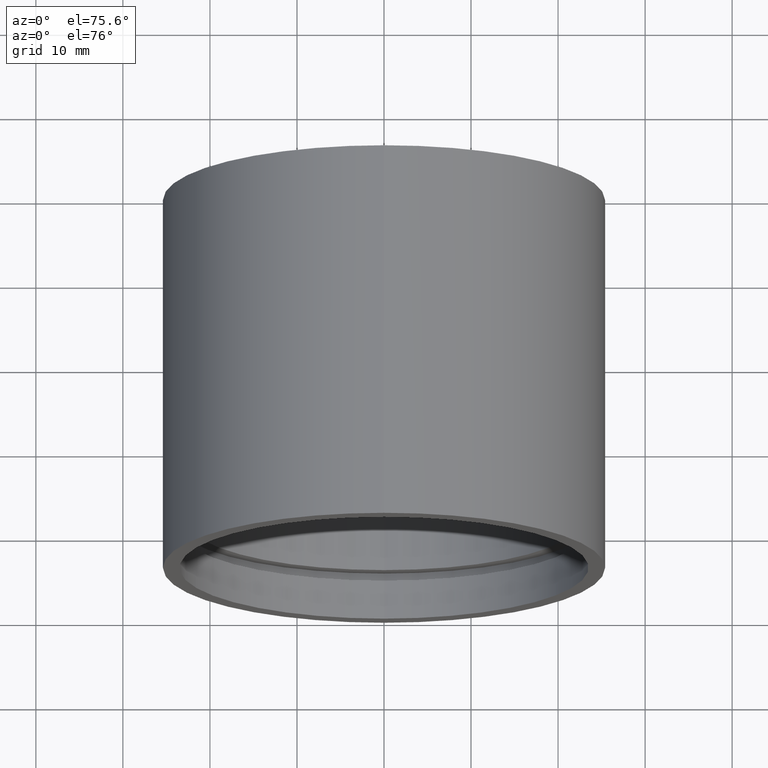
[diagram: clean part render]
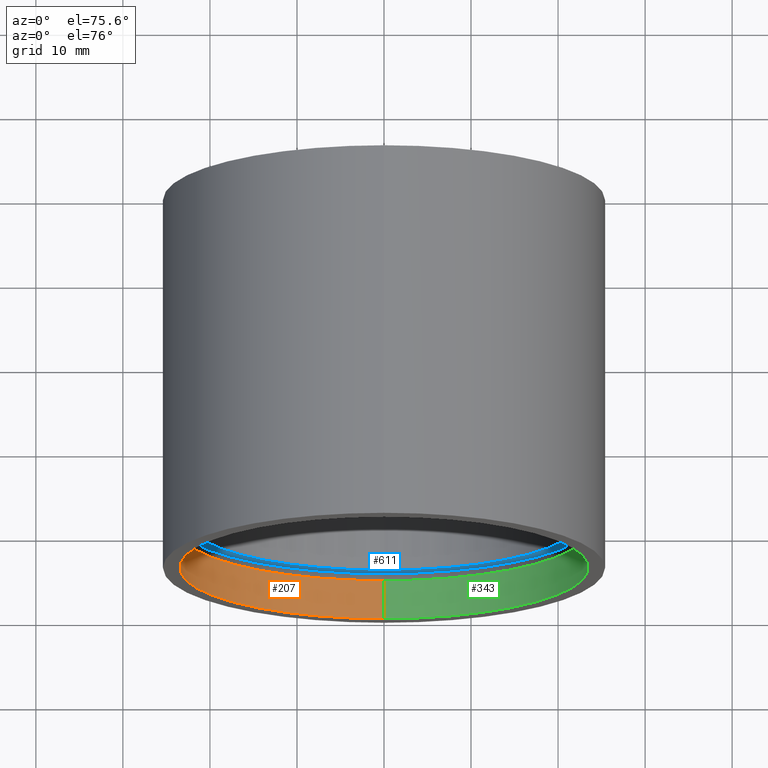
[diagram: same view with three faces highlighted in distinct colors, each labeled with its STEP entity id]
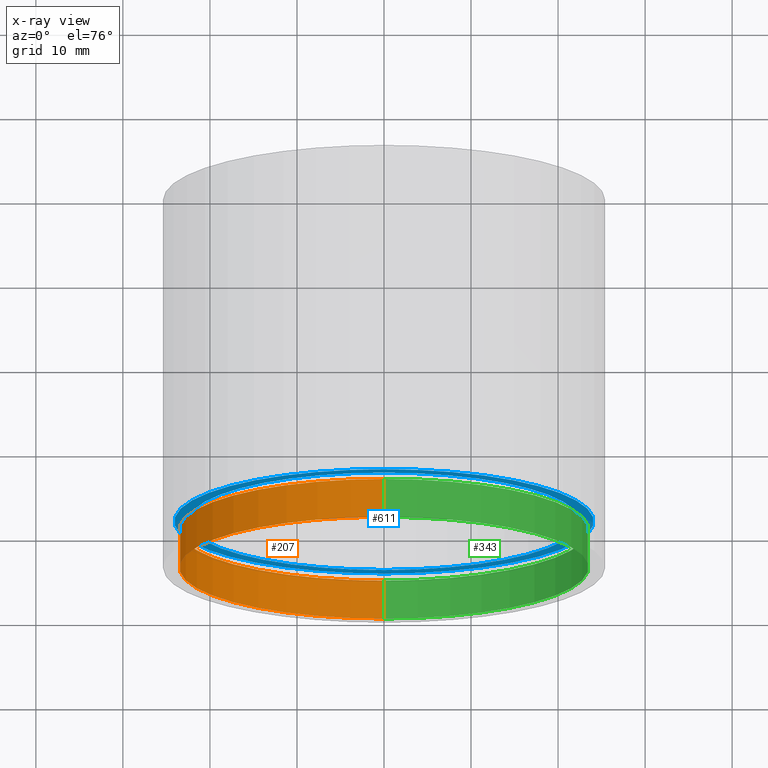
[diagram: x-ray of the same camera — body ghosted, the three highlighted faces saturated]
A machine part, auxiliary view with three faces highlighted in distinct colors.
The next image is the same camera in x-ray (body ghosted, the three faces saturated) — at least one of them is partly hidden behind the body in this view.
Their STEP definitions:

[orange] entity #207 — the highlighted cylindrical surface (partial cylindrical patch) has radius 23.5 mm, axis along (-0, 1, -0).
#1 = DIRECTION ( 'NONE',  ( 0.0000000000000000000, 0.0000000000000000000, 1.000000000000000000 ) ) ;
#52 = ORIENTED_EDGE ( 'NONE', *, *, #502, .F. ) ;
#54 = AXIS2_PLACEMENT_3D ( 'NONE', #364, #419, #471 ) ;
#81 = CYLINDRICAL_SURFACE ( 'NONE', #174, 23.50000000000002100 ) ;
#91 = CIRCLE ( 'NONE', #149, 23.50000000000002100 ) ;
#99 = CARTESIAN_POINT ( 'NONE',  ( 2.877919977996282700E-015, -2.775557561562891400E-014, -23.50000000000002100 ) ) ;
#125 = DIRECTION ( 'NONE',  ( -0.0000000000000000000, 1.000000000000000000, -0.0000000000000000000 ) ) ;
#138 = CIRCLE ( 'NONE', #54, 23.50000000000002100 ) ;
#140 = VECTOR ( 'NONE', #338, 1000.000000000000000 ) ;
#141 = FACE_OUTER_BOUND ( 'NONE', #487, .T. ) ;
#149 = AXIS2_PLACEMENT_3D ( 'NONE', #270, #467, #1 ) ;
#154 = CARTESIAN_POINT ( 'NONE',  ( 2.877919977996282700E-015, 4.499999999999976000, -23.50000000000002100 ) ) ;
#155 = ORIENTED_EDGE ( 'NONE', *, *, #208, .T. ) ;
#159 = VERTEX_POINT ( 'NONE', #99 ) ;
#174 = AXIS2_PLACEMENT_3D ( 'NONE', #275, #360, #323 ) ;
#207 = ADVANCED_FACE ( 'NONE', ( #141 ), #81, .F. ) ;
#208 = EDGE_CURVE ( 'NONE', #214, #508, #138, .T. ) ;
#214 = VERTEX_POINT ( 'NONE', #154 ) ;
#220 = EDGE_CURVE ( 'NONE', #159, #459, #91, .T. ) ;
#241 = CARTESIAN_POINT ( 'NONE',  ( 0.0000000000000000000, -2.775557561562891400E-014, 23.50000000000002100 ) ) ;
#270 = CARTESIAN_POINT ( 'NONE',  ( 0.0000000000000000000, -2.775557561562891400E-014, 0.0000000000000000000 ) ) ;
#275 = CARTESIAN_POINT ( 'NONE',  ( 0.0000000000000000000, 161.3761669434274500, 0.0000000000000000000 ) ) ;
#290 = CARTESIAN_POINT ( 'NONE',  ( 0.0000000000000000000, 4.499999999999976000, 23.50000000000002100 ) ) ;
#323 = DIRECTION ( 'NONE',  ( 0.0000000000000000000, 0.0000000000000000000, 1.000000000000000000 ) ) ;
#326 = VECTOR ( 'NONE', #125, 1000.000000000000000 ) ;
#338 = DIRECTION ( 'NONE',  ( -0.0000000000000000000, 1.000000000000000000, -0.0000000000000000000 ) ) ;
#360 = DIRECTION ( 'NONE',  ( -0.0000000000000000000, 1.000000000000000000, -0.0000000000000000000 ) ) ;
#364 = CARTESIAN_POINT ( 'NONE',  ( 0.0000000000000000000, 4.499999999999976000, 0.0000000000000000000 ) ) ;
#381 = EDGE_CURVE ( 'NONE', #159, #214, #537, .T. ) ;
#389 = CARTESIAN_POINT ( 'NONE',  ( 2.877919977996282700E-015, 161.3761669434274500, -23.50000000000002100 ) ) ;
#410 = ORIENTED_EDGE ( 'NONE', *, *, #381, .T. ) ;
#412 = ORIENTED_EDGE ( 'NONE', *, *, #220, .F. ) ;
#419 = DIRECTION ( 'NONE',  ( -0.0000000000000000000, 1.000000000000000000, -0.0000000000000000000 ) ) ;
#459 = VERTEX_POINT ( 'NONE', #241 ) ;
#467 = DIRECTION ( 'NONE',  ( -0.0000000000000000000, 1.000000000000000000, -0.0000000000000000000 ) ) ;
#471 = DIRECTION ( 'NONE',  ( 0.0000000000000000000, 0.0000000000000000000, 1.000000000000000000 ) ) ;
#481 = CARTESIAN_POINT ( 'NONE',  ( 0.0000000000000000000, 161.3761669434274500, 23.50000000000002100 ) ) ;
#487 = EDGE_LOOP ( 'NONE', ( #412, #410, #155, #52 ) ) ;
#502 = EDGE_CURVE ( 'NONE', #459, #508, #510, .T. ) ;
#508 = VERTEX_POINT ( 'NONE', #290 ) ;
#510 = LINE ( 'NONE', #481, #140 ) ;
#537 = LINE ( 'NONE', #389, #326 ) ;

[blue] entity #611 — the highlighted planar face has unit normal (-0, 1, 0).
#4 = VERTEX_POINT ( 'NONE', #619 ) ;
#16 = DIRECTION ( 'NONE',  ( -0.0000000000000000000, 1.000000000000000000, -0.0000000000000000000 ) ) ;
#23 = EDGE_LOOP ( 'NONE', ( #110, #477 ) ) ;
#44 = CARTESIAN_POINT ( 'NONE',  ( 22.50000000000001800, 5.499999999999984900, 0.0000000000000000000 ) ) ;
#53 = DIRECTION ( 'NONE',  ( 0.0000000000000000000, 0.0000000000000000000, 1.000000000000000000 ) ) ;
#76 = CARTESIAN_POINT ( 'NONE',  ( 2.951398785945123600E-015, 5.499999999999976900, -24.10000000000001900 ) ) ;
#95 = VERTEX_POINT ( 'NONE', #355 ) ;
#103 = CARTESIAN_POINT ( 'NONE',  ( 0.0000000000000000000, 5.499999999999976900, 24.10000000000001900 ) ) ;
#110 = ORIENTED_EDGE ( 'NONE', *, *, #232, .T. ) ;
#127 = CARTESIAN_POINT ( 'NONE',  ( 0.0000000000000000000, 5.499999999999976900, 0.0000000000000000000 ) ) ;
#153 = EDGE_CURVE ( 'NONE', #507, #242, #298, .T. ) ;
#165 = AXIS2_PLACEMENT_3D ( 'NONE', #468, #572, #367 ) ;
#175 = AXIS2_PLACEMENT_3D ( 'NONE', #44, #221, #563 ) ;
#186 = DIRECTION ( 'NONE',  ( -0.0000000000000000000, 1.000000000000000000, -0.0000000000000000000 ) ) ;
#204 = AXIS2_PLACEMENT_3D ( 'NONE', #379, #16, #281 ) ;
#221 = DIRECTION ( 'NONE',  ( -0.0000000000000000000, 1.000000000000000000, 0.0000000000000000000 ) ) ;
#232 = EDGE_CURVE ( 'NONE', #4, #95, #493, .T. ) ;
#242 = VERTEX_POINT ( 'NONE', #103 ) ;
#268 = CARTESIAN_POINT ( 'NONE',  ( 0.0000000000000000000, 5.499999999999976900, 0.0000000000000000000 ) ) ;
#277 = EDGE_LOOP ( 'NONE', ( #282, #532 ) ) ;
#281 = DIRECTION ( 'NONE',  ( 0.0000000000000000000, 0.0000000000000000000, 1.000000000000000000 ) ) ;
#282 = ORIENTED_EDGE ( 'NONE', *, *, #435, .F. ) ;
#285 = FACE_BOUND ( 'NONE', #23, .T. ) ;
#286 = AXIS2_PLACEMENT_3D ( 'NONE', #127, #598, #441 ) ;
#291 = EDGE_CURVE ( 'NONE', #95, #4, #557, .T. ) ;
#298 = CIRCLE ( 'NONE', #165, 24.10000000000001900 ) ;
#303 = FACE_OUTER_BOUND ( 'NONE', #277, .T. ) ;
#312 = PLANE ( 'NONE',  #175 ) ;
#355 = CARTESIAN_POINT ( 'NONE',  ( 2.755455298081546700E-015, 5.499999999999976900, -22.50000000000001800 ) ) ;
#367 = DIRECTION ( 'NONE',  ( 0.0000000000000000000, 0.0000000000000000000, 1.000000000000000000 ) ) ;
#379 = CARTESIAN_POINT ( 'NONE',  ( 0.0000000000000000000, 5.499999999999976900, 0.0000000000000000000 ) ) ;
#417 = AXIS2_PLACEMENT_3D ( 'NONE', #268, #186, #53 ) ;
#432 = CIRCLE ( 'NONE', #286, 24.10000000000001900 ) ;
#435 = EDGE_CURVE ( 'NONE', #242, #507, #432, .T. ) ;
#441 = DIRECTION ( 'NONE',  ( 0.0000000000000000000, 0.0000000000000000000, 1.000000000000000000 ) ) ;
#468 = CARTESIAN_POINT ( 'NONE',  ( 0.0000000000000000000, 5.499999999999976900, 0.0000000000000000000 ) ) ;
#477 = ORIENTED_EDGE ( 'NONE', *, *, #291, .T. ) ;
#493 = CIRCLE ( 'NONE', #417, 22.50000000000001800 ) ;
#507 = VERTEX_POINT ( 'NONE', #76 ) ;
#532 = ORIENTED_EDGE ( 'NONE', *, *, #153, .F. ) ;
#557 = CIRCLE ( 'NONE', #204, 22.50000000000001800 ) ;
#563 = DIRECTION ( 'NONE',  ( 0.0000000000000000000, 0.0000000000000000000, 1.000000000000000000 ) ) ;
#572 = DIRECTION ( 'NONE',  ( -0.0000000000000000000, 1.000000000000000000, -0.0000000000000000000 ) ) ;
#598 = DIRECTION ( 'NONE',  ( -0.0000000000000000000, 1.000000000000000000, -0.0000000000000000000 ) ) ;
#611 = ADVANCED_FACE ( 'NONE', ( #303, #285 ), #312, .F. ) ;
#619 = CARTESIAN_POINT ( 'NONE',  ( 0.0000000000000000000, 5.499999999999976900, 22.50000000000001800 ) ) ;

[green] entity #343 — the highlighted cylindrical surface (partial cylindrical patch) has radius 23.5 mm, axis along (-0, 1, -0).
#2 = FACE_OUTER_BOUND ( 'NONE', #495, .T. ) ;
#34 = ORIENTED_EDGE ( 'NONE', *, *, #539, .T. ) ;
#67 = CARTESIAN_POINT ( 'NONE',  ( 0.0000000000000000000, 161.3761669434274500, 0.0000000000000000000 ) ) ;
#99 = CARTESIAN_POINT ( 'NONE',  ( 2.877919977996282700E-015, -2.775557561562891400E-014, -23.50000000000002100 ) ) ;
#125 = DIRECTION ( 'NONE',  ( -0.0000000000000000000, 1.000000000000000000, -0.0000000000000000000 ) ) ;
#140 = VECTOR ( 'NONE', #338, 1000.000000000000000 ) ;
#146 = CIRCLE ( 'NONE', #615, 23.50000000000002100 ) ;
#154 = CARTESIAN_POINT ( 'NONE',  ( 2.877919977996282700E-015, 4.499999999999976000, -23.50000000000002100 ) ) ;
#159 = VERTEX_POINT ( 'NONE', #99 ) ;
#163 = DIRECTION ( 'NONE',  ( -0.0000000000000000000, 1.000000000000000000, -0.0000000000000000000 ) ) ;
#195 = CARTESIAN_POINT ( 'NONE',  ( 0.0000000000000000000, -2.775557561562891400E-014, 0.0000000000000000000 ) ) ;
#198 = DIRECTION ( 'NONE',  ( -0.0000000000000000000, 1.000000000000000000, -0.0000000000000000000 ) ) ;
#202 = CYLINDRICAL_SURFACE ( 'NONE', #320, 23.50000000000002100 ) ;
#209 = ORIENTED_EDGE ( 'NONE', *, *, #502, .T. ) ;
#214 = VERTEX_POINT ( 'NONE', #154 ) ;
#231 = CIRCLE ( 'NONE', #573, 23.50000000000002100 ) ;
#241 = CARTESIAN_POINT ( 'NONE',  ( 0.0000000000000000000, -2.775557561562891400E-014, 23.50000000000002100 ) ) ;
#262 = EDGE_CURVE ( 'NONE', #459, #159, #146, .T. ) ;
#290 = CARTESIAN_POINT ( 'NONE',  ( 0.0000000000000000000, 4.499999999999976000, 23.50000000000002100 ) ) ;
#295 = DIRECTION ( 'NONE',  ( -0.0000000000000000000, 1.000000000000000000, -0.0000000000000000000 ) ) ;
#320 = AXIS2_PLACEMENT_3D ( 'NONE', #67, #163, #589 ) ;
#326 = VECTOR ( 'NONE', #125, 1000.000000000000000 ) ;
#338 = DIRECTION ( 'NONE',  ( -0.0000000000000000000, 1.000000000000000000, -0.0000000000000000000 ) ) ;
#343 = ADVANCED_FACE ( 'NONE', ( #2 ), #202, .F. ) ;
#344 = CARTESIAN_POINT ( 'NONE',  ( 0.0000000000000000000, 4.499999999999976000, 0.0000000000000000000 ) ) ;
#381 = EDGE_CURVE ( 'NONE', #159, #214, #537, .T. ) ;
#389 = CARTESIAN_POINT ( 'NONE',  ( 2.877919977996282700E-015, 161.3761669434274500, -23.50000000000002100 ) ) ;
#423 = DIRECTION ( 'NONE',  ( 0.0000000000000000000, 0.0000000000000000000, 1.000000000000000000 ) ) ;
#445 = DIRECTION ( 'NONE',  ( 0.0000000000000000000, 0.0000000000000000000, 1.000000000000000000 ) ) ;
#459 = VERTEX_POINT ( 'NONE', #241 ) ;
#481 = CARTESIAN_POINT ( 'NONE',  ( 0.0000000000000000000, 161.3761669434274500, 23.50000000000002100 ) ) ;
#495 = EDGE_LOOP ( 'NONE', ( #584, #542, #209, #34 ) ) ;
#502 = EDGE_CURVE ( 'NONE', #459, #508, #510, .T. ) ;
#508 = VERTEX_POINT ( 'NONE', #290 ) ;
#510 = LINE ( 'NONE', #481, #140 ) ;
#537 = LINE ( 'NONE', #389, #326 ) ;
#539 = EDGE_CURVE ( 'NONE', #508, #214, #231, .T. ) ;
#542 = ORIENTED_EDGE ( 'NONE', *, *, #262, .F. ) ;
#573 = AXIS2_PLACEMENT_3D ( 'NONE', #344, #295, #445 ) ;
#584 = ORIENTED_EDGE ( 'NONE', *, *, #381, .F. ) ;
#589 = DIRECTION ( 'NONE',  ( 0.0000000000000000000, 0.0000000000000000000, 1.000000000000000000 ) ) ;
#615 = AXIS2_PLACEMENT_3D ( 'NONE', #195, #198, #423 ) ;